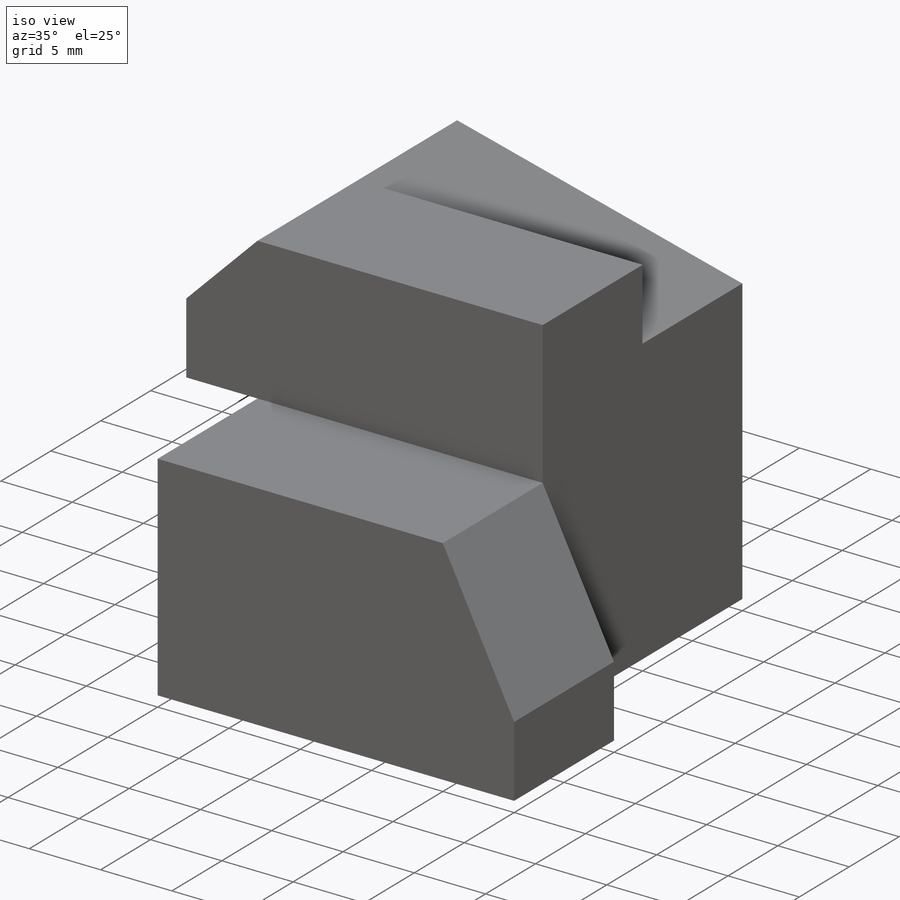
[diagram: iso view]
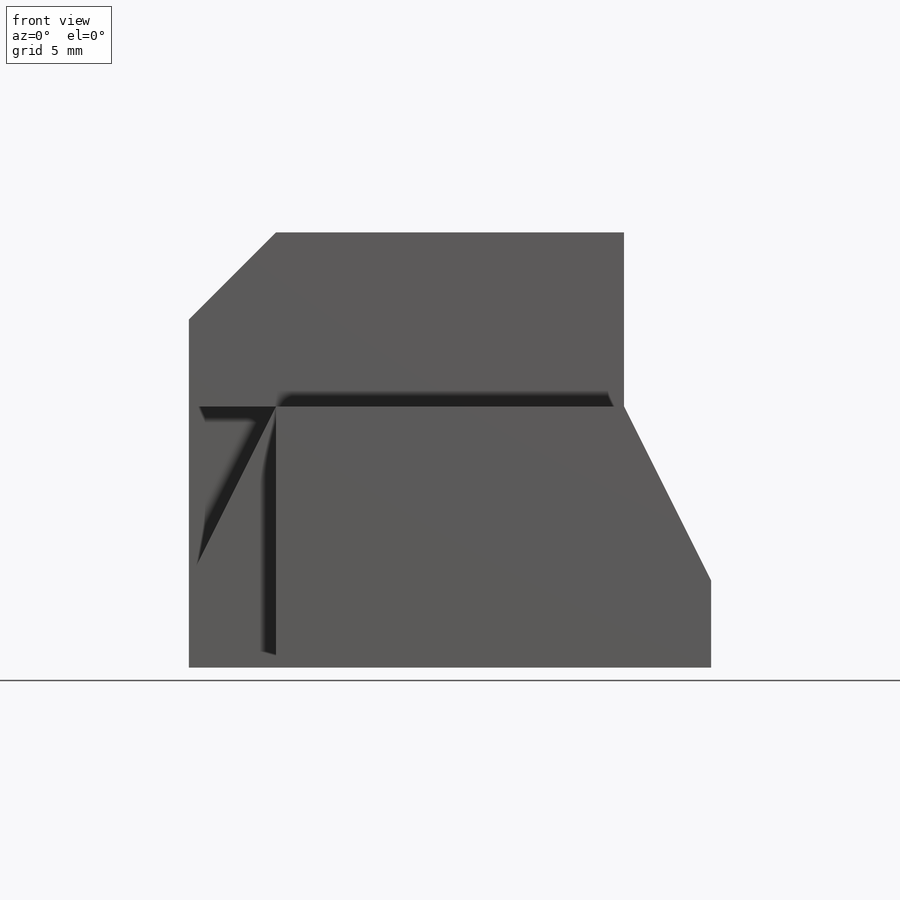
[diagram: front view]
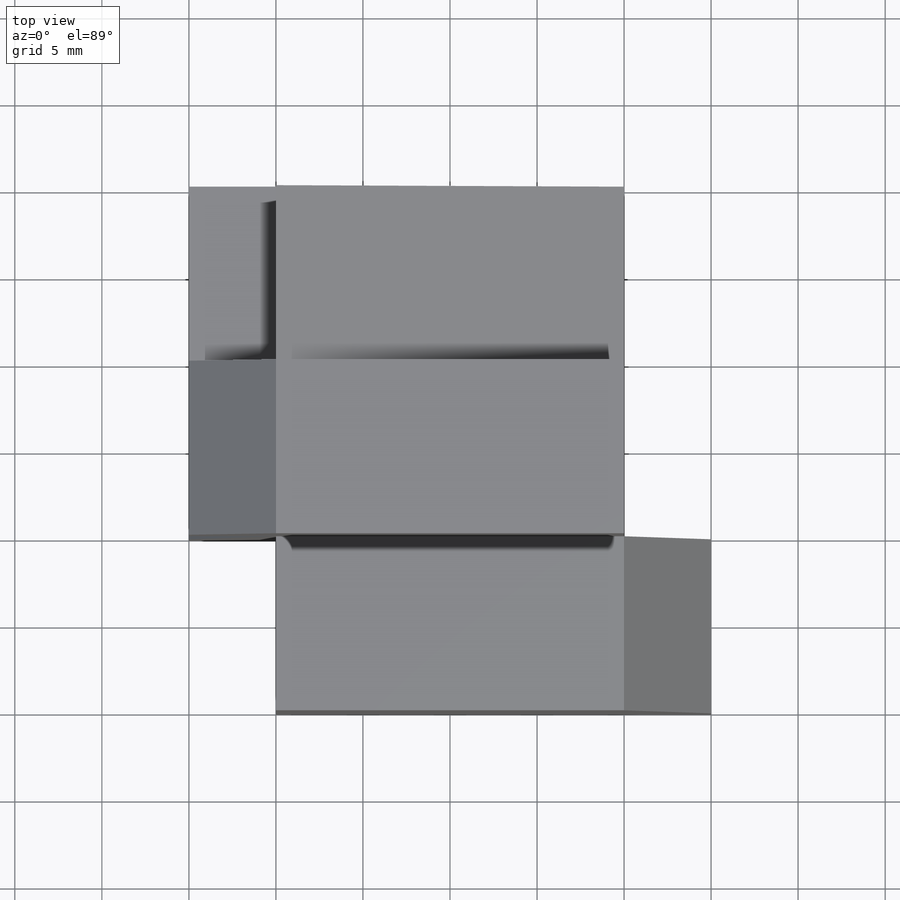
[diagram: top view]
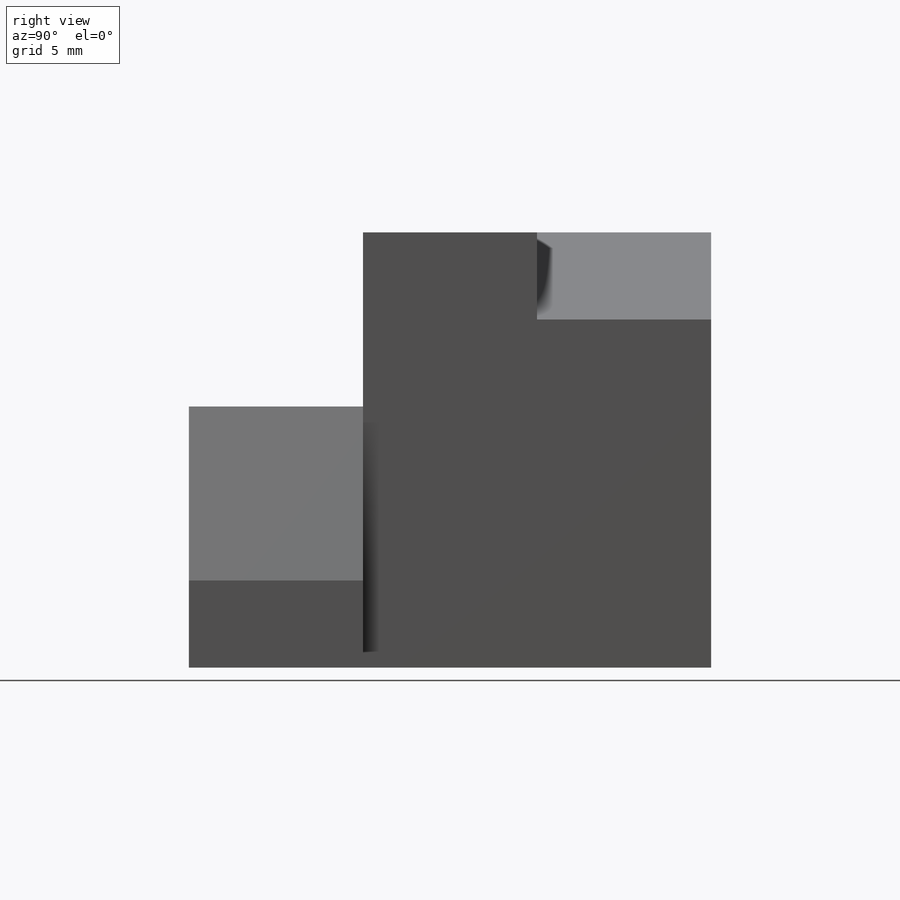
[diagram: right view]
SOLIDWORKS PART (.sldprt)
format: sldprt  version: not decoded by parser v0  size: 181,248 bytes
history: native  units: mm
features: sketch x5, extrude x5, material x1 (+13 scaffold rows collapsed)
feature tree (24):
  scaffold x13  (default folders/planes/origin — collapsed)
  material  "Material <not specified>"
  sketch  "Sketch1"  dims[D1=20.0mm D2=25.0mm D3=5.0mm D4=15.0mm]
  extrude  "Boss-Extrude4"  Depth=10mm
  sketch  "Sketch3"  dims[D1=25.0mm D2=5.0mm]
  extrude  "Boss-Extrude5"  Depth=10mm
  sketch  "Sketch4"  dims[D1=10.0mm D3=5.0mm D4=20.0mm D5=25.0mm D2=0.0mm]
  extrude  "Boss-Extrude13"  Depth=10mm
  sketch  "Sketch9"  dims[D1=20.0mm]
  extrude  "Boss-Extrude14"  Depth=10mm
  sketch  "Sketch10"
  extrude  "Boss-Extrude15"  Depth=10mm
decode coverage: 9 of 10 modeling features carry decoded parameters
note: suppression state not decoded; provenance and decode notes live in map.json
